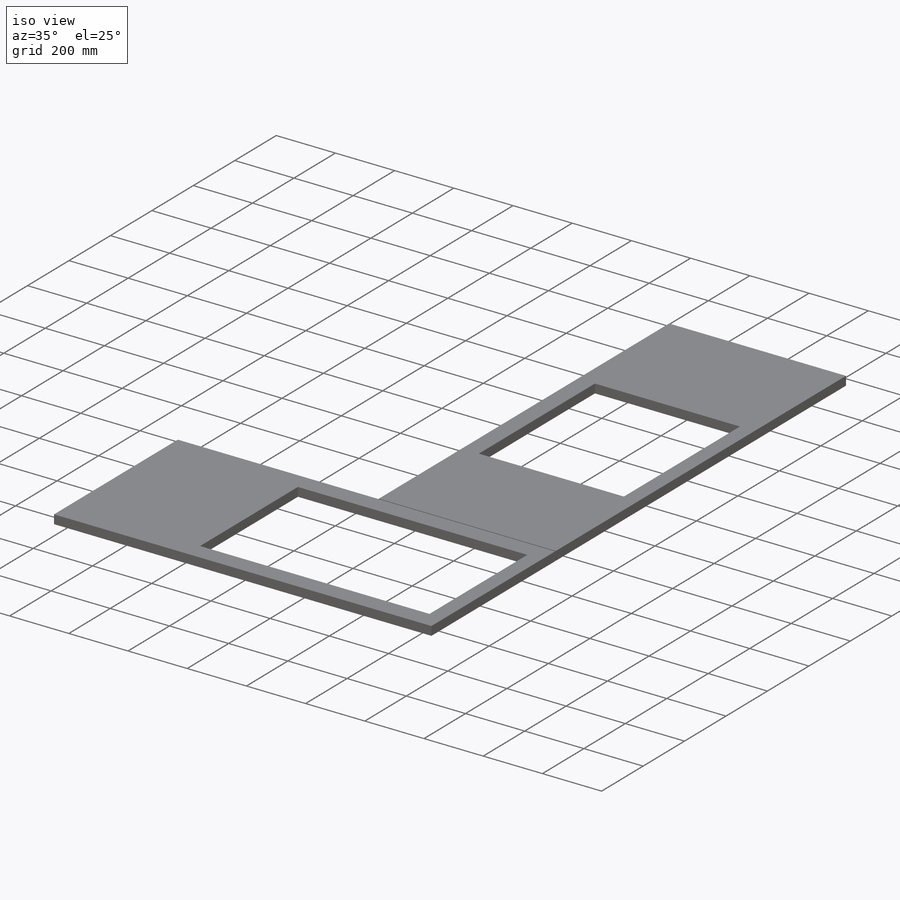
[diagram: iso view]
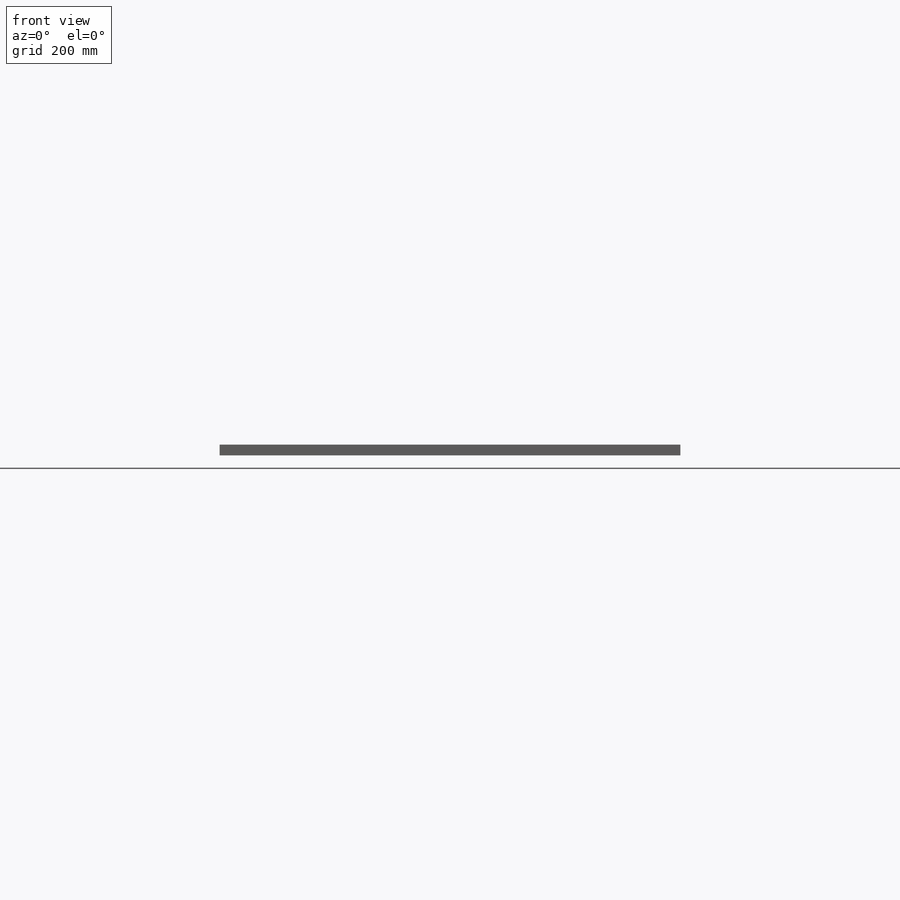
[diagram: front view]
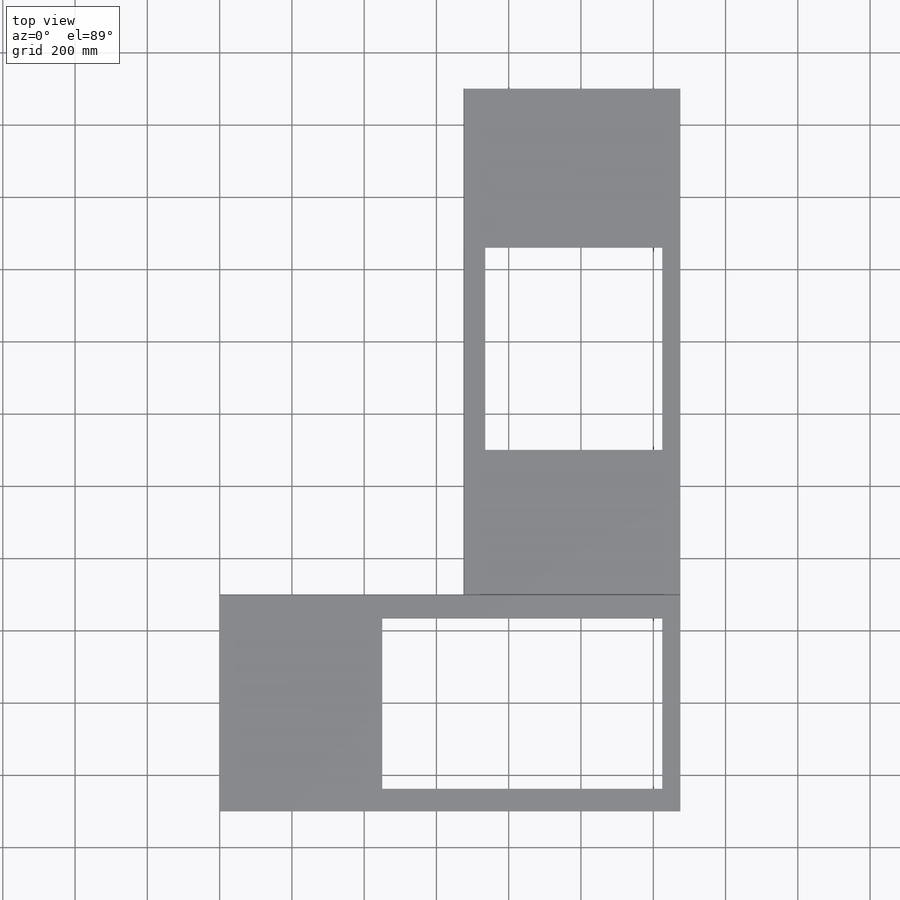
[diagram: top view]
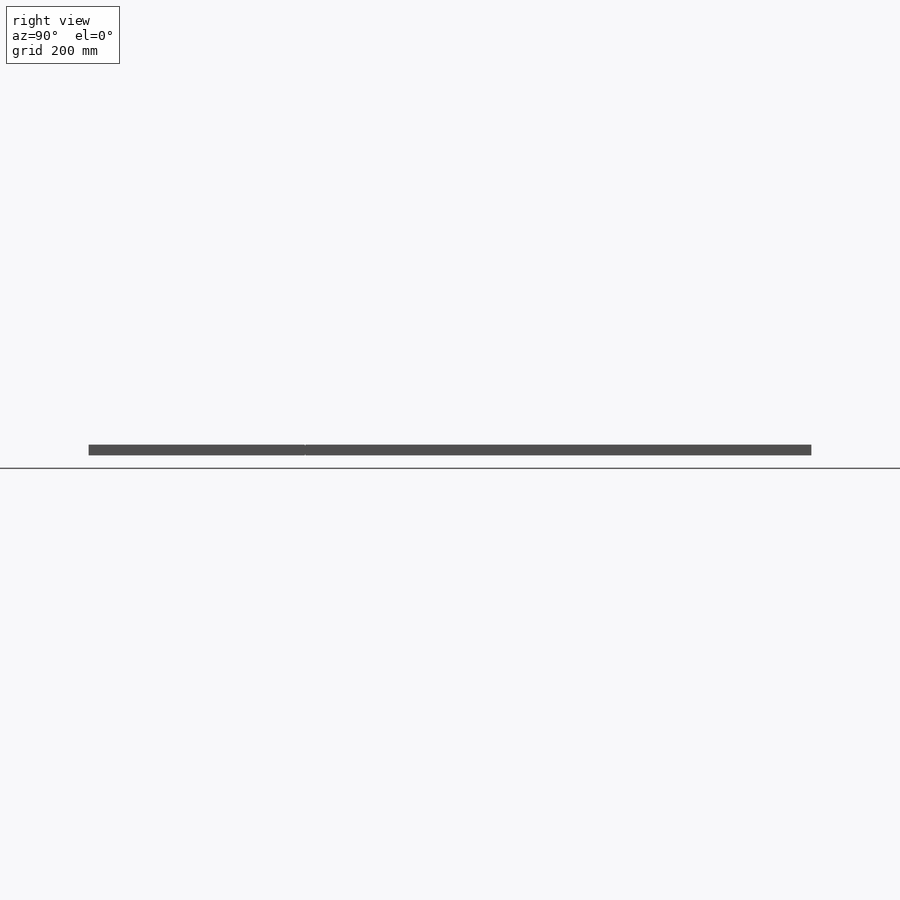
[diagram: right view]
SOLIDWORKS PART (.sldprt)
format: sldprt  version: not decoded by parser v0  size: 218,112 bytes
history: native  units: mm
features: sketch x6, cut_extrude x4, extrude x2, material x1 (+12 scaffold rows collapsed)
feature tree (25):
  scaffold x12  (default folders/planes/origin — collapsed)
  material  "Material <not specified>"
  sketch  "Sketch2"  dims[D3=4.0mm D1=38.0mm D2=600.0mm]
  extrude  "Boss-Extrude1"  Depth=1375mm
  sketch  "Sketch3"  dims[D2=4.0mm D1=600.0mm]
  extrude  "Boss-Extrude2"  Depth=2600mm
  sketch  "Sketch4"  dims[D1=775.0mm D2=472.0mm D3=100.0mm]
  cut_extrude  "sink"  [1 undecoded]
  sketch  "Sketch5"  dims[D1=50.0mm D2=560.0mm D3=490.0mm D4=1224.0mm]
  cut_extrude  "panel"  [1 undecoded]
  sketch  "Sketch6"  dims[D1=250.0mm]
  cut_extrude  "Cut-Extrude1"  [1 undecoded]
  sketch  "Sketch7"  dims[D2=~526.400804mm D1=150.0mm]
  cut_extrude  "Cut-Extrude2"  [1 undecoded]
decode coverage: 8 of 12 modeling features carry decoded parameters
note: ~ marks probable driven/reference dimensions
note: 4 parameter values undecoded
summary: no parameter record found for 4 features
note: suppression state not decoded; provenance and decode notes live in map.json
